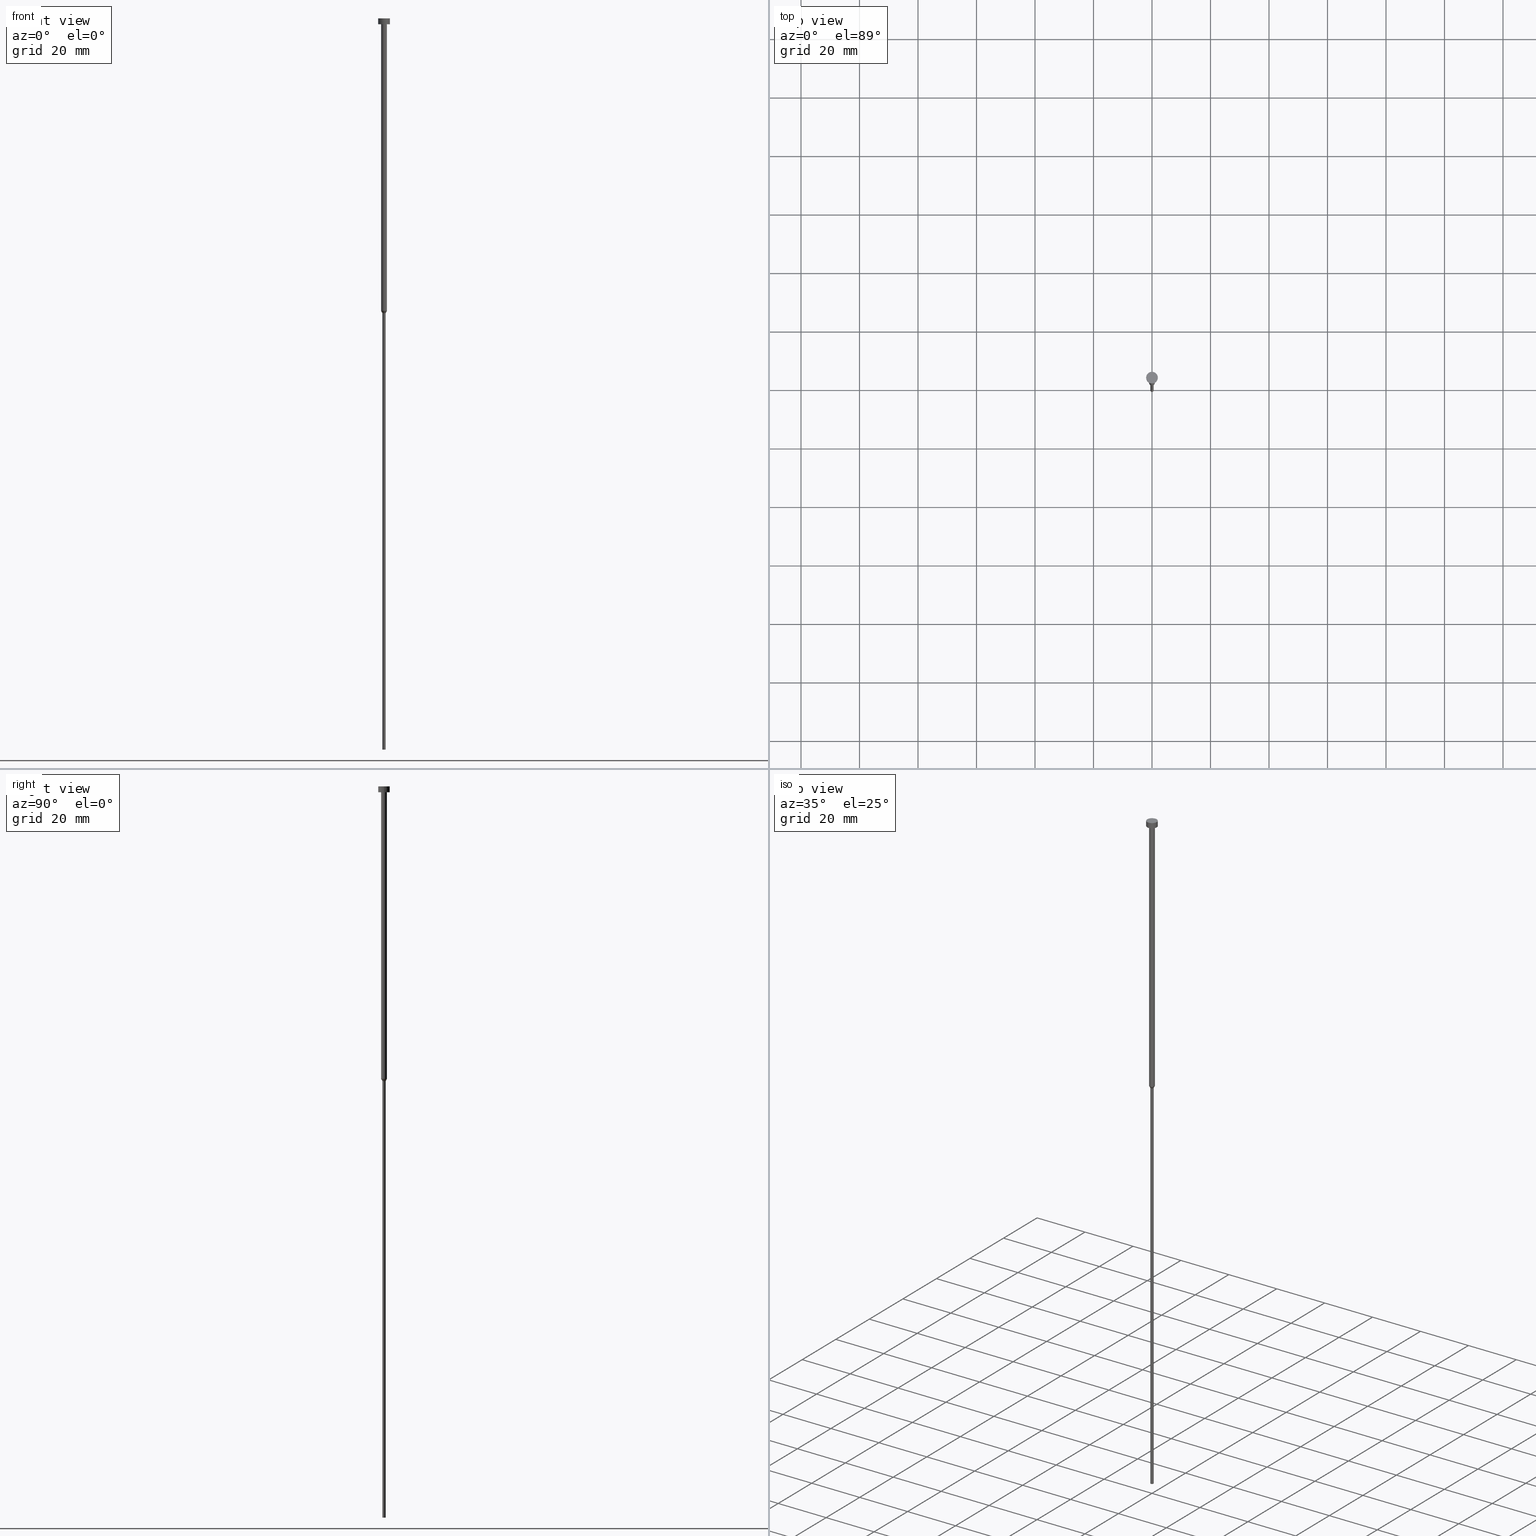
[diagram: canonical four-view strip — front | top / right | iso, engineering-drawing reading convention]
A machine part, canonical four-view strip (front | top / right | iso — engineering-drawing reading convention). The complete STEP part file that produces these views, byte-faithful:
ISO-10303-21;
HEADER;
FILE_DESCRIPTION (( 'STEP AP203' ),
    '1' );
FILE_NAME ('0484.STEP',
    '2023-02-13T10:58:07',
    ( '' ),
    ( '' ),
    'SwSTEP 2.0',
    'SolidWorks 2019',
    '' );
FILE_SCHEMA (( 'CONFIG_CONTROL_DESIGN' ));
ENDSEC;

DATA;
#1 = CARTESIAN_POINT ( 'NONE',  ( 1.000000000000003109, 0.000000000000000000, -100.0000000000000000 ) ) ;
#2 = PRODUCT_DEFINITION_FORMATION_WITH_SPECIFIED_SOURCE ( 'LIBOVOLN�', '', #4, .NOT_KNOWN. ) ;
#3 = PRODUCT_RELATED_PRODUCT_CATEGORY ( 'detail', '', ( #4 ) ) ;
#4 = PRODUCT ( '0484', '0484', '', ( #146 ) ) ;
#5 = ORIENTED_EDGE ( 'NONE', *, *, #117, .T. ) ;
#6 = CALENDAR_DATE ( 2023, 13, 2 ) ;
#7 = ORIENTED_EDGE ( 'NONE', *, *, #73, .F. ) ;
#8 = DIRECTION ( 'NONE',  ( -0.000000000000000000, -0.000000000000000000, 1.000000000000000000 ) ) ;
#9 = FACE_OUTER_BOUND ( 'NONE', #147, .T. ) ;
#10 = VERTEX_POINT ( 'NONE', #249 ) ;
#11 = PLANE ( 'NONE',  #158 ) ;
#12 = AXIS2_PLACEMENT_3D ( 'NONE', #182, #40, #219 ) ;
#13 = PERSON_AND_ORGANIZATION_ROLE ( 'creator' ) ;
#14 = ORIENTED_EDGE ( 'NONE', *, *, #119, .T. ) ;
#15 = DIRECTION ( 'NONE',  ( 1.000000000000000000, 0.000000000000000000, 0.000000000000000000 ) ) ;
#16 = EDGE_LOOP ( 'NONE', ( #236, #14 ) ) ;
#17 = CARTESIAN_POINT ( 'NONE',  ( -1.000000000000003109, 1.224646799147356905E-16, -100.0000000000000000 ) ) ;
#18 = ADVANCED_FACE ( 'NONE', ( #319 ), #187, .T. ) ;
#19 = AXIS2_PLACEMENT_3D ( 'NONE', #338, #312, #317 ) ;
#20 =( NAMED_UNIT ( * ) SI_UNIT ( $, .STERADIAN. ) SOLID_ANGLE_UNIT ( ) );
#21 = ORIENTED_EDGE ( 'NONE', *, *, #191, .F. ) ;
#22 = DATE_TIME_ROLE ( 'classification_date' ) ;
#23 = CC_DESIGN_DATE_AND_TIME_ASSIGNMENT ( #154, #95, ( #88 ) ) ;
#24 = CALENDAR_DATE ( 2023, 13, 2 ) ;
#25 = DIRECTION ( 'NONE',  ( -0.000000000000000000, -0.000000000000000000, 1.000000000000000000 ) ) ;
#26 = CARTESIAN_POINT ( 'NONE',  ( 2.000000000000000000, 0.000000000000000000, 0.000000000000000000 ) ) ;
#27 = CARTESIAN_POINT ( 'NONE',  ( 0.000000000000000000, 0.000000000000000000, -100.0000000000000000 ) ) ;
#28 = LINE ( 'NONE', #140, #51 ) ;
#29 = DIRECTION ( 'NONE',  ( -0.000000000000000000, -0.000000000000000000, 1.000000000000000000 ) ) ;
#30 = AXIS2_PLACEMENT_3D ( 'NONE', #230, #330, #204 ) ;
#31 = CIRCLE ( 'NONE', #19, 2.000000000000000000 ) ;
#32 = CARTESIAN_POINT ( 'NONE',  ( 0.5499999999999999334, 0.000000000000000000, -250.0000000000000000 ) ) ;
#33 = PRODUCT_DEFINITION_SHAPE ( 'NONE', 'NONE',  #88 ) ;
#34 = ADVANCED_FACE ( 'NONE', ( #198 ), #294, .T. ) ;
#35 = ORIENTED_EDGE ( 'NONE', *, *, #261, .T. ) ;
#36 = AXIS2_PLACEMENT_3D ( 'NONE', #67, #124, #243 ) ;
#37 = CARTESIAN_POINT ( 'NONE',  ( 1.000000000000003331, 0.000000000000000000, 0.000000000000000000 ) ) ;
#38 = VERTEX_POINT ( 'NONE', #350 ) ;
#39 = VERTEX_POINT ( 'NONE', #105 ) ;
#40 = DIRECTION ( 'NONE',  ( -0.000000000000000000, -0.000000000000000000, 1.000000000000000000 ) ) ;
#41 = EDGE_CURVE ( 'NONE', #54, #332, #159, .T. ) ;
#42 = CYLINDRICAL_SURFACE ( 'NONE', #84, 0.5499999999999999334 ) ;
#43 = PERSON_AND_ORGANIZATION_ROLE ( 'creator' ) ;
#44 = ORIENTED_EDGE ( 'NONE', *, *, #244, .T. ) ;
#45 = AXIS2_PLACEMENT_3D ( 'NONE', #336, #8, #206 ) ;
#46 = FACE_OUTER_BOUND ( 'NONE', #90, .T. ) ;
#47 = CALENDAR_DATE ( 2023, 13, 2 ) ;
#48 = EDGE_CURVE ( 'NONE', #332, #54, #266, .T. ) ;
#49 = ADVANCED_FACE ( 'NONE', ( #193 ), #169, .T. ) ;
#50 = DATE_AND_TIME ( #24, #185 ) ;
#51 = VECTOR ( 'NONE', #208, 1000.000000000000000 ) ;
#52 = PERSON_AND_ORGANIZATION_ROLE ( 'design_supplier' ) ;
#53 = EDGE_CURVE ( 'NONE', #38, #10, #227, .T. ) ;
#54 = VERTEX_POINT ( 'NONE', #32 ) ;
#55 = DIRECTION ( 'NONE',  ( 1.000000000000000000, 0.000000000000000000, 0.000000000000000000 ) ) ;
#56 = FACE_OUTER_BOUND ( 'NONE', #284, .T. ) ;
#57 = DIRECTION ( 'NONE',  ( 1.000000000000000000, 0.000000000000000000, 0.000000000000000000 ) ) ;
#58 = DIRECTION ( 'NONE',  ( -0.000000000000000000, -0.000000000000000000, 1.000000000000000000 ) ) ;
#59 = EDGE_CURVE ( 'NONE', #306, #10, #282, .T. ) ;
#60 = ORIENTED_EDGE ( 'NONE', *, *, #174, .T. ) ;
#61 = AXIS2_PLACEMENT_3D ( 'NONE', #228, #254, #57 ) ;
#62 = DATE_AND_TIME ( #305, #190 ) ;
#63 = EDGE_LOOP ( 'NONE', ( #342, #233, #85, #231 ) ) ;
#64 = CIRCLE ( 'NONE', #275, 1.000000000000003553 ) ;
#65 = VERTEX_POINT ( 'NONE', #82 ) ;
#66 = ORIENTED_EDGE ( 'NONE', *, *, #174, .F. ) ;
#67 = CARTESIAN_POINT ( 'NONE',  ( 0.000000000000000000, 0.000000000000000000, -2.000000000000000444 ) ) ;
#68 = DIRECTION ( 'NONE',  ( -0.000000000000000000, -0.000000000000000000, 1.000000000000000000 ) ) ;
#69 = ADVANCED_FACE ( 'NONE', ( #301 ), #109, .T. ) ;
#70 = APPROVAL_DATE_TIME ( #215, #195 ) ;
#71 = ORIENTED_EDGE ( 'NONE', *, *, #48, .F. ) ;
#72 = CARTESIAN_POINT ( 'NONE',  ( -1.000000000000003553, 1.224646799147357398E-16, -2.000000000000000444 ) ) ;
#73 = EDGE_CURVE ( 'NONE', #205, #240, #308, .T. ) ;
#74 = APPROVAL ( #183, 'NEUR�EN�' ) ;
#75 = DIRECTION ( 'NONE',  ( 1.000000000000000000, 0.000000000000000000, 0.000000000000000000 ) ) ;
#76 =( LENGTH_UNIT ( ) NAMED_UNIT ( * ) SI_UNIT ( .MILLI., .METRE. ) );
#77 = ORIENTED_EDGE ( 'NONE', *, *, #102, .F. ) ;
#78 = AXIS2_PLACEMENT_3D ( 'NONE', #299, #175, #325 ) ;
#79 = AXIS2_PLACEMENT_3D ( 'NONE', #171, #29, #135 ) ;
#80 = CYLINDRICAL_SURFACE ( 'NONE', #61, 0.5499999999999999334 ) ;
#81 = DIRECTION ( 'NONE',  ( 1.000000000000000000, 0.000000000000000000, 0.000000000000000000 ) ) ;
#82 = CARTESIAN_POINT ( 'NONE',  ( 1.000000000000003553, 0.000000000000000000, -2.000000000000000444 ) ) ;
#83 = AXIS2_PLACEMENT_3D ( 'NONE', #302, #131, #346 ) ;
#84 = AXIS2_PLACEMENT_3D ( 'NONE', #341, #25, #134 ) ;
#85 = ORIENTED_EDGE ( 'NONE', *, *, #279, .T. ) ;
#86 = ADVANCED_FACE ( 'NONE', ( #272 ), #151, .T. ) ;
#87 = CARTESIAN_POINT ( 'NONE',  ( 0.000000000000000000, 0.000000000000000000, -100.0000000000000000 ) ) ;
#88 = PRODUCT_DEFINITION ( 'NEZN�M�', '', #2, #161 ) ;
#89 = APPLICATION_PROTOCOL_DEFINITION ( 'international standard', 'config_control_design', 1994, #237 ) ;
#90 = EDGE_LOOP ( 'NONE', ( #7, #276 ) ) ;
#91 = AXIS2_PLACEMENT_3D ( 'NONE', #122, #337, #55 ) ;
#92 = CARTESIAN_POINT ( 'NONE',  ( 0.000000000000000000, 0.000000000000000000, -2.449293598294705921E-16 ) ) ;
#93 = CARTESIAN_POINT ( 'NONE',  ( 0.000000000000000000, 0.000000000000000000, -100.0000000000000000 ) ) ;
#94 = EDGE_CURVE ( 'NONE', #65, #181, #172, .T. ) ;
#95 = DATE_TIME_ROLE ( 'creation_date' ) ;
#96 = AXIS2_PLACEMENT_3D ( 'NONE', #291, #251, #81 ) ;
#97 = CARTESIAN_POINT ( 'NONE',  ( -2.000000000000000000, 2.449293598294706414E-16, -2.449293598294705921E-16 ) ) ;
#98 = AXIS2_PLACEMENT_3D ( 'NONE', #153, #268, #15 ) ;
#99 = SHAPE_DEFINITION_REPRESENTATION ( #33, #104 ) ;
#100 = EDGE_CURVE ( 'NONE', #39, #306, #114, .T. ) ;
#101 = EDGE_CURVE ( 'NONE', #240, #205, #115, .T. ) ;
#102 = EDGE_CURVE ( 'NONE', #113, #323, #31, .T. ) ;
#103 = COORDINATED_UNIVERSAL_TIME_OFFSET ( 1, 0, .AHEAD. ) ;
#104 = ADVANCED_BREP_SHAPE_REPRESENTATION ( '0484', ( #259, #354 ), #256 ) ;
#105 = CARTESIAN_POINT ( 'NONE',  ( -0.5500000000000000444, 6.735557395310442516E-17, -100.7794228634059976 ) ) ;
#106 = VECTOR ( 'NONE', #351, 1000.000000000000000 ) ;
#107 = VECTOR ( 'NONE', #224, 1000.000000000000000 ) ;
#108 = FACE_OUTER_BOUND ( 'NONE', #63, .T. ) ;
#109 = CYLINDRICAL_SURFACE ( 'NONE', #30, 1.000000000000003331 ) ;
#110 = DIRECTION ( 'NONE',  ( -0.000000000000000000, -0.000000000000000000, 1.000000000000000000 ) ) ;
#111 = LINE ( 'NONE', #292, #207 ) ;
#112 = CC_DESIGN_DATE_AND_TIME_ASSIGNMENT ( #50, #22, ( #343 ) ) ;
#113 = VERTEX_POINT ( 'NONE', #97 ) ;
#114 = LINE ( 'NONE', #17, #178 ) ;
#115 = CIRCLE ( 'NONE', #36, 2.000000000000000000 ) ;
#116 = FACE_BOUND ( 'NONE', #16, .T. ) ;
#117 = EDGE_CURVE ( 'NONE', #39, #38, #225, .T. ) ;
#118 = COORDINATED_UNIVERSAL_TIME_OFFSET ( 1, 0, .AHEAD. ) ;
#119 = EDGE_CURVE ( 'NONE', #181, #65, #64, .T. ) ;
#120 = ORIENTED_EDGE ( 'NONE', *, *, #261, .F. ) ;
#121 = LINE ( 'NONE', #37, #137 ) ;
#122 = CARTESIAN_POINT ( 'NONE',  ( 0.000000000000000000, 0.000000000000000000, 0.000000000000000000 ) ) ;
#123 = ORIENTED_EDGE ( 'NONE', *, *, #279, .F. ) ;
#124 = DIRECTION ( 'NONE',  ( -0.000000000000000000, -0.000000000000000000, 1.000000000000000000 ) ) ;
#125 = DIRECTION ( 'NONE',  ( 0.000000000000000000, 0.000000000000000000, 1.000000000000000000 ) ) ;
#126 = ORIENTED_EDGE ( 'NONE', *, *, #94, .F. ) ;
#127 = APPROVAL_DATE_TIME ( #273, #202 ) ;
#128 = LOCAL_TIME ( 11, 58, 7.000000000000000000, #132 ) ;
#129 = EDGE_LOOP ( 'NONE', ( #120, #145, #44, #77 ) ) ;
#130 = APPLICATION_PROTOCOL_DEFINITION ( 'international standard', 'config_control_design', 1994, #162 ) ;
#131 = DIRECTION ( 'NONE',  ( -0.000000000000000000, -0.000000000000000000, 1.000000000000000000 ) ) ;
#132 = COORDINATED_UNIVERSAL_TIME_OFFSET ( 1, 0, .AHEAD. ) ;
#133 = ADVANCED_FACE ( 'NONE', ( #116, #46 ), #11, .T. ) ;
#134 = DIRECTION ( 'NONE',  ( 1.000000000000000000, 0.000000000000000000, 0.000000000000000000 ) ) ;
#135 = DIRECTION ( 'NONE',  ( 1.000000000000000000, 0.000000000000000000, 0.000000000000000000 ) ) ;
#136 = AXIS2_PLACEMENT_3D ( 'NONE', #281, #201, #252 ) ;
#137 = VECTOR ( 'NONE', #143, 1000.000000000000000 ) ;
#138 = CARTESIAN_POINT ( 'NONE',  ( 0.000000000000000000, 0.000000000000000000, -100.0000000000000000 ) ) ;
#139 = EDGE_CURVE ( 'NONE', #323, #113, #200, .T. ) ;
#140 = CARTESIAN_POINT ( 'NONE',  ( -2.000000000000000000, 2.449293598294706414E-16, 0.000000000000000000 ) ) ;
#141 = CC_DESIGN_APPROVAL ( #74, ( #88 ) ) ;
#142 = ORIENTED_EDGE ( 'NONE', *, *, #41, .F. ) ;
#143 = DIRECTION ( 'NONE',  ( -0.000000000000000000, -0.000000000000000000, 1.000000000000000000 ) ) ;
#144 = PERSON_AND_ORGANIZATION_ROLE ( 'design_owner' ) ;
#145 = ORIENTED_EDGE ( 'NONE', *, *, #101, .T. ) ;
#146 = MECHANICAL_CONTEXT ( 'NONE', #162, 'mechanical' ) ;
#147 = EDGE_LOOP ( 'NONE', ( #184, #293, #287, #123 ) ) ;
#148 = DIRECTION ( 'NONE',  ( -0.000000000000000000, -0.000000000000000000, 1.000000000000000000 ) ) ;
#149 = CC_DESIGN_PERSON_AND_ORGANIZATION_ASSIGNMENT ( #310, #43, ( #88 ) ) ;
#150 = APPROVAL_STATUS ( 'not_yet_approved' ) ;
#151 = CONICAL_SURFACE ( 'NONE', #199, 1.000000000000003109, 0.5235987755983059211 ) ;
#152 = ORIENTED_EDGE ( 'NONE', *, *, #102, .T. ) ;
#153 = CARTESIAN_POINT ( 'NONE',  ( 0.000000000000000000, 0.000000000000000000, -100.7794228634059976 ) ) ;
#154 = DATE_AND_TIME ( #6, #322 ) ;
#155 = EDGE_LOOP ( 'NONE', ( #303, #5, #242, #271 ) ) ;
#156 = DIRECTION ( 'NONE',  ( 1.000000000000000000, 0.000000000000000000, 0.000000000000000000 ) ) ;
#157 = EDGE_CURVE ( 'NONE', #38, #39, #274, .T. ) ;
#158 = AXIS2_PLACEMENT_3D ( 'NONE', #333, #189, #238 ) ;
#159 = CIRCLE ( 'NONE', #83, 0.5499999999999999334 ) ;
#160 = CC_DESIGN_PERSON_AND_ORGANIZATION_ASSIGNMENT ( #241, #13, ( #2 ) ) ;
#161 = DESIGN_CONTEXT ( 'detailed design', #237, 'design' ) ;
#162 = APPLICATION_CONTEXT ( 'configuration controlled 3d designs of mechanical parts and assemblies' ) ;
#163 = SECURITY_CLASSIFICATION_LEVEL ( 'unclassified' ) ;
#164 = EDGE_CURVE ( 'NONE', #10, #65, #121, .T. ) ;
#165 = DIRECTION ( 'NONE',  ( -0.000000000000000000, -0.000000000000000000, 1.000000000000000000 ) ) ;
#166 = VECTOR ( 'NONE', #327, 1000.000000000000000 ) ;
#167 = CARTESIAN_POINT ( 'NONE',  ( -1.000000000000003109, 1.224646799147356905E-16, -100.0000000000000000 ) ) ;
#168 = DIRECTION ( 'NONE',  ( 1.000000000000000000, 0.000000000000000000, 0.000000000000000000 ) ) ;
#169 = PLANE ( 'NONE',  #136 ) ;
#170 = DIRECTION ( 'NONE',  ( 0.5000000000000061062, 0.000000000000000000, 0.8660254037844351549 ) ) ;
#171 = CARTESIAN_POINT ( 'NONE',  ( 0.000000000000000000, 0.000000000000000000, 0.000000000000000000 ) ) ;
#172 = CIRCLE ( 'NONE', #45, 1.000000000000003553 ) ;
#173 = CC_DESIGN_APPROVAL ( #202, ( #343 ) ) ;
#174 = EDGE_CURVE ( 'NONE', #10, #306, #209, .T. ) ;
#175 = DIRECTION ( 'NONE',  ( -0.000000000000000000, -0.000000000000000000, 1.000000000000000000 ) ) ;
#176 = ORIENTED_EDGE ( 'NONE', *, *, #191, .T. ) ;
#177 = DIRECTION ( 'NONE',  ( -0.000000000000000000, -0.000000000000000000, 1.000000000000000000 ) ) ;
#178 = VECTOR ( 'NONE', #211, 1000.000000000000000 ) ;
#179 = ORIENTED_EDGE ( 'NONE', *, *, #244, .F. ) ;
#180 = LINE ( 'NONE', #285, #166 ) ;
#181 = VERTEX_POINT ( 'NONE', #72 ) ;
#182 = CARTESIAN_POINT ( 'NONE',  ( 0.000000000000000000, 0.000000000000000000, -100.7794228634059976 ) ) ;
#183 = APPROVAL_STATUS ( 'not_yet_approved' ) ;
#184 = ORIENTED_EDGE ( 'NONE', *, *, #41, .T. ) ;
#185 = LOCAL_TIME ( 11, 58, 7.000000000000000000, #103 ) ;
#186 = EDGE_LOOP ( 'NONE', ( #142, #71 ) ) ;
#187 = PLANE ( 'NONE',  #96 ) ;
#188 = CALENDAR_DATE ( 2023, 13, 2 ) ;
#189 = DIRECTION ( 'NONE',  ( 0.000000000000000000, 0.000000000000000000, -1.000000000000000000 ) ) ;
#190 = LOCAL_TIME ( 11, 58, 7.000000000000000000, #334 ) ;
#191 = EDGE_CURVE ( 'NONE', #306, #181, #111, .T. ) ;
#192 = CARTESIAN_POINT ( 'NONE',  ( 0.000000000000000000, 0.000000000000000000, 0.000000000000000000 ) ) ;
#193 = FACE_OUTER_BOUND ( 'NONE', #186, .T. ) ;
#194 = CARTESIAN_POINT ( 'NONE',  ( -2.000000000000000000, 2.449293598294706414E-16, -2.000000000000000444 ) ) ;
#195 = APPROVAL ( #150, 'NEUR�EN�' ) ;
#196 = ORIENTED_EDGE ( 'NONE', *, *, #119, .F. ) ;
#197 = FACE_OUTER_BOUND ( 'NONE', #203, .T. ) ;
#198 = FACE_OUTER_BOUND ( 'NONE', #155, .T. ) ;
#199 = AXIS2_PLACEMENT_3D ( 'NONE', #87, #264, #307 ) ;
#200 = CIRCLE ( 'NONE', #245, 2.000000000000000000 ) ;
#201 = DIRECTION ( 'NONE',  ( 0.000000000000000000, 0.000000000000000000, -1.000000000000000000 ) ) ;
#202 = APPROVAL ( #248, 'NEUR�EN�' ) ;
#203 = EDGE_LOOP ( 'NONE', ( #60, #176, #126, #289 ) ) ;
#204 = DIRECTION ( 'NONE',  ( 1.000000000000000000, 0.000000000000000000, 0.000000000000000000 ) ) ;
#205 = VERTEX_POINT ( 'NONE', #265 ) ;
#206 = DIRECTION ( 'NONE',  ( 1.000000000000000000, 0.000000000000000000, 0.000000000000000000 ) ) ;
#207 = VECTOR ( 'NONE', #68, 1000.000000000000000 ) ;
#208 = DIRECTION ( 'NONE',  ( -0.000000000000000000, -0.000000000000000000, 1.000000000000000000 ) ) ;
#209 = CIRCLE ( 'NONE', #324, 1.000000000000003109 ) ;
#210 = EDGE_LOOP ( 'NONE', ( #311, #152 ) ) ;
#211 = DIRECTION ( 'NONE',  ( -0.5000000000000061062, 6.123233995736841224E-17, 0.8660254037844351549 ) ) ;
#212 = CYLINDRICAL_SURFACE ( 'NONE', #91, 2.000000000000000000 ) ;
#213 = ORIENTED_EDGE ( 'NONE', *, *, #59, .T. ) ;
#214 = DIRECTION ( 'NONE',  ( -0.000000000000000000, -0.000000000000000000, 1.000000000000000000 ) ) ;
#215 = DATE_AND_TIME ( #47, #340 ) ;
#216 = EDGE_LOOP ( 'NONE', ( #21, #213, #313, #196 ) ) ;
#217 = DIRECTION ( 'NONE',  ( 1.000000000000000000, 0.000000000000000000, 0.000000000000000000 ) ) ;
#218 = APPROVAL_PERSON_ORGANIZATION ( #223, #202, #278 ) ;
#219 = DIRECTION ( 'NONE',  ( 1.000000000000000000, 0.000000000000000000, 0.000000000000000000 ) ) ;
#220 = CC_DESIGN_PERSON_AND_ORGANIZATION_ASSIGNMENT ( #315, #144, ( #4 ) ) ;
#221 = PERSON ( 'NEUR�EN�', 'NEUR�EN�', 'NEUR�EN�', ('NEUR�EN�'), ('NEUR�EN�'), ('NEUR�EN�') ) ;
#222 = ADVANCED_FACE ( 'NONE', ( #246 ), #212, .T. ) ;
#223 = PERSON_AND_ORGANIZATION ( #221, #318 ) ;
#224 = DIRECTION ( 'NONE',  ( -0.000000000000000000, -0.000000000000000000, 1.000000000000000000 ) ) ;
#225 = CIRCLE ( 'NONE', #12, 0.5500000000000000444 ) ;
#226 = ORIENTED_EDGE ( 'NONE', *, *, #73, .T. ) ;
#227 = LINE ( 'NONE', #1, #353 ) ;
#228 = CARTESIAN_POINT ( 'NONE',  ( 0.000000000000000000, 0.000000000000000000, 0.000000000000000000 ) ) ;
#229 = DIRECTION ( 'NONE',  ( 1.000000000000000000, 0.000000000000000000, 0.000000000000000000 ) ) ;
#230 = CARTESIAN_POINT ( 'NONE',  ( 0.000000000000000000, 0.000000000000000000, 0.000000000000000000 ) ) ;
#231 = ORIENTED_EDGE ( 'NONE', *, *, #117, .F. ) ;
#232 = DIRECTION ( 'NONE',  ( 1.000000000000000000, 0.000000000000000000, 0.000000000000000000 ) ) ;
#233 = ORIENTED_EDGE ( 'NONE', *, *, #48, .T. ) ;
#234 = AXIS2_PLACEMENT_3D ( 'NONE', #304, #177, #156 ) ;
#235 = PERSON_AND_ORGANIZATION ( #221, #318 ) ;
#236 = ORIENTED_EDGE ( 'NONE', *, *, #94, .T. ) ;
#237 = APPLICATION_CONTEXT ( 'configuration controlled 3d designs of mechanical parts and assemblies' ) ;
#238 = DIRECTION ( 'NONE',  ( -1.000000000000000000, 0.000000000000000000, -0.000000000000000000 ) ) ;
#239 =( NAMED_UNIT ( * ) PLANE_ANGLE_UNIT ( ) SI_UNIT ( $, .RADIAN. ) );
#240 = VERTEX_POINT ( 'NONE', #194 ) ;
#241 = PERSON_AND_ORGANIZATION ( #221, #318 ) ;
#242 = ORIENTED_EDGE ( 'NONE', *, *, #53, .T. ) ;
#243 = DIRECTION ( 'NONE',  ( 1.000000000000000000, 0.000000000000000000, 0.000000000000000000 ) ) ;
#244 = EDGE_CURVE ( 'NONE', #205, #323, #347, .T. ) ;
#245 = AXIS2_PLACEMENT_3D ( 'NONE', #92, #214, #314 ) ;
#246 = FACE_OUTER_BOUND ( 'NONE', #129, .T. ) ;
#247 = ADVANCED_FACE ( 'NONE', ( #56 ), #344, .T. ) ;
#248 = APPROVAL_STATUS ( 'not_yet_approved' ) ;
#249 = CARTESIAN_POINT ( 'NONE',  ( 1.000000000000003109, 0.000000000000000000, -100.0000000000000000 ) ) ;
#250 = PERSON_AND_ORGANIZATION ( #221, #318 ) ;
#251 = DIRECTION ( 'NONE',  ( 0.000000000000000000, -0.000000000000000000, 1.000000000000000000 ) ) ;
#252 = DIRECTION ( 'NONE',  ( -1.000000000000000000, 0.000000000000000000, -0.000000000000000000 ) ) ;
#253 = APPROVAL_PERSON_ORGANIZATION ( #262, #195, #267 ) ;
#254 = DIRECTION ( 'NONE',  ( -0.000000000000000000, -0.000000000000000000, 1.000000000000000000 ) ) ;
#255 = DIRECTION ( 'NONE',  ( 1.000000000000000000, 0.000000000000000000, 0.000000000000000000 ) ) ;
#256 =( GEOMETRIC_REPRESENTATION_CONTEXT ( 3 ) GLOBAL_UNCERTAINTY_ASSIGNED_CONTEXT ( ( #297 ) ) GLOBAL_UNIT_ASSIGNED_CONTEXT ( ( #76, #239, #20 ) ) REPRESENTATION_CONTEXT ( 'NONE', 'WORKASPACE' ) );
#257 = ORIENTED_EDGE ( 'NONE', *, *, #157, .T. ) ;
#258 = DIRECTION ( 'NONE',  ( -0.000000000000000000, -0.000000000000000000, 1.000000000000000000 ) ) ;
#259 = MANIFOLD_SOLID_BREP ( 'Rotovat1', #328 ) ;
#260 = APPROVAL_DATE_TIME ( #62, #74 ) ;
#261 = EDGE_CURVE ( 'NONE', #240, #113, #28, .T. ) ;
#262 = PERSON_AND_ORGANIZATION ( #221, #318 ) ;
#263 = EDGE_LOOP ( 'NONE', ( #257, #335, #66, #316 ) ) ;
#264 = DIRECTION ( 'NONE',  ( -0.000000000000000000, -0.000000000000000000, 1.000000000000000000 ) ) ;
#265 = CARTESIAN_POINT ( 'NONE',  ( 2.000000000000000000, 0.000000000000000000, -2.000000000000000444 ) ) ;
#266 = CIRCLE ( 'NONE', #78, 0.5499999999999999334 ) ;
#267 = APPROVAL_ROLE ( '' ) ;
#268 = DIRECTION ( 'NONE',  ( -0.000000000000000000, -0.000000000000000000, 1.000000000000000000 ) ) ;
#269 = PERSON_AND_ORGANIZATION ( #221, #318 ) ;
#270 = CC_DESIGN_PERSON_AND_ORGANIZATION_ASSIGNMENT ( #269, #52, ( #2 ) ) ;
#271 = ORIENTED_EDGE ( 'NONE', *, *, #59, .F. ) ;
#272 = FACE_OUTER_BOUND ( 'NONE', #263, .T. ) ;
#273 = DATE_AND_TIME ( #188, #128 ) ;
#274 = CIRCLE ( 'NONE', #98, 0.5500000000000000444 ) ;
#275 = AXIS2_PLACEMENT_3D ( 'NONE', #320, #148, #75 ) ;
#276 = ORIENTED_EDGE ( 'NONE', *, *, #101, .F. ) ;
#277 = AXIS2_PLACEMENT_3D ( 'NONE', #138, #110, #255 ) ;
#278 = APPROVAL_ROLE ( '' ) ;
#279 = EDGE_CURVE ( 'NONE', #54, #38, #180, .T. ) ;
#280 = LINE ( 'NONE', #348, #106 ) ;
#281 = CARTESIAN_POINT ( 'NONE',  ( 0.000000000000000000, 0.000000000000000000, -250.0000000000000000 ) ) ;
#282 = CIRCLE ( 'NONE', #277, 1.000000000000003109 ) ;
#283 = APPROVAL_PERSON_ORGANIZATION ( #235, #74, #290 ) ;
#284 = EDGE_LOOP ( 'NONE', ( #226, #35, #331, #179 ) ) ;
#285 = CARTESIAN_POINT ( 'NONE',  ( 0.5499999999999999334, 0.000000000000000000, 0.000000000000000000 ) ) ;
#286 = CARTESIAN_POINT ( 'NONE',  ( 0.000000000000000000, 0.000000000000000000, 0.000000000000000000 ) ) ;
#287 = ORIENTED_EDGE ( 'NONE', *, *, #157, .F. ) ;
#288 = COORDINATED_UNIVERSAL_TIME_OFFSET ( 1, 0, .AHEAD. ) ;
#289 = ORIENTED_EDGE ( 'NONE', *, *, #164, .F. ) ;
#290 = APPROVAL_ROLE ( '' ) ;
#291 = CARTESIAN_POINT ( 'NONE',  ( 0.000000000000000000, 0.000000000000000000, -1.224646799147352961E-16 ) ) ;
#292 = CARTESIAN_POINT ( 'NONE',  ( -1.000000000000003331, 1.224646799147357151E-16, 0.000000000000000000 ) ) ;
#293 = ORIENTED_EDGE ( 'NONE', *, *, #321, .T. ) ;
#294 = CONICAL_SURFACE ( 'NONE', #339, 1.000000000000003109, 0.5235987755983059211 ) ;
#295 = PERSON_AND_ORGANIZATION_ROLE ( 'classification_officer' ) ;
#296 = ADVANCED_FACE ( 'NONE', ( #9 ), #42, .T. ) ;
#297 = UNCERTAINTY_MEASURE_WITH_UNIT (LENGTH_MEASURE( 1.000000000000000082E-05 ), #76, 'distance_accuracy_value', 'NONE');
#298 = CC_DESIGN_SECURITY_CLASSIFICATION ( #343, ( #2 ) ) ;
#299 = CARTESIAN_POINT ( 'NONE',  ( 0.000000000000000000, 0.000000000000000000, -250.0000000000000000 ) ) ;
#300 = CYLINDRICAL_SURFACE ( 'NONE', #79, 1.000000000000003331 ) ;
#301 = FACE_OUTER_BOUND ( 'NONE', #216, .T. ) ;
#302 = CARTESIAN_POINT ( 'NONE',  ( 0.000000000000000000, 0.000000000000000000, -250.0000000000000000 ) ) ;
#303 = ORIENTED_EDGE ( 'NONE', *, *, #100, .F. ) ;
#304 = CARTESIAN_POINT ( 'NONE',  ( 0.000000000000000000, 0.000000000000000000, -2.000000000000000444 ) ) ;
#305 = CALENDAR_DATE ( 2023, 13, 2 ) ;
#306 = VERTEX_POINT ( 'NONE', #167 ) ;
#307 = DIRECTION ( 'NONE',  ( 1.000000000000000000, 0.000000000000000000, 0.000000000000000000 ) ) ;
#308 = CIRCLE ( 'NONE', #234, 2.000000000000000000 ) ;
#309 = AXIS2_PLACEMENT_3D ( 'NONE', #192, #165, #168 ) ;
#310 = PERSON_AND_ORGANIZATION ( #221, #318 ) ;
#311 = ORIENTED_EDGE ( 'NONE', *, *, #139, .T. ) ;
#312 = DIRECTION ( 'NONE',  ( -0.000000000000000000, -0.000000000000000000, 1.000000000000000000 ) ) ;
#313 = ORIENTED_EDGE ( 'NONE', *, *, #164, .T. ) ;
#314 = DIRECTION ( 'NONE',  ( 1.000000000000000000, 0.000000000000000000, 0.000000000000000000 ) ) ;
#315 = PERSON_AND_ORGANIZATION ( #221, #318 ) ;
#316 = ORIENTED_EDGE ( 'NONE', *, *, #53, .F. ) ;
#317 = DIRECTION ( 'NONE',  ( 1.000000000000000000, 0.000000000000000000, 0.000000000000000000 ) ) ;
#318 = ORGANIZATION ( 'NEUR�EN�', 'NEUR�EN�', '' ) ;
#319 = FACE_OUTER_BOUND ( 'NONE', #210, .T. ) ;
#320 = CARTESIAN_POINT ( 'NONE',  ( 0.000000000000000000, 0.000000000000000000, -2.000000000000000444 ) ) ;
#321 = EDGE_CURVE ( 'NONE', #332, #39, #280, .T. ) ;
#322 = LOCAL_TIME ( 11, 58, 7.000000000000000000, #118 ) ;
#323 = VERTEX_POINT ( 'NONE', #326 ) ;
#324 = AXIS2_PLACEMENT_3D ( 'NONE', #93, #258, #217 ) ;
#325 = DIRECTION ( 'NONE',  ( 1.000000000000000000, 0.000000000000000000, 0.000000000000000000 ) ) ;
#326 = CARTESIAN_POINT ( 'NONE',  ( 2.000000000000000000, 0.000000000000000000, -2.449293598294705921E-16 ) ) ;
#327 = DIRECTION ( 'NONE',  ( -0.000000000000000000, -0.000000000000000000, 1.000000000000000000 ) ) ;
#328 = CLOSED_SHELL ( 'NONE', ( #247, #349, #86, #296, #49, #329, #34, #69, #133, #222, #18 ) ) ;
#329 = ADVANCED_FACE ( 'NONE', ( #108 ), #80, .T. ) ;
#330 = DIRECTION ( 'NONE',  ( -0.000000000000000000, -0.000000000000000000, 1.000000000000000000 ) ) ;
#331 = ORIENTED_EDGE ( 'NONE', *, *, #139, .F. ) ;
#332 = VERTEX_POINT ( 'NONE', #355 ) ;
#333 = CARTESIAN_POINT ( 'NONE',  ( 0.000000000000000000, -2.000000000000000000, -2.000000000000000444 ) ) ;
#334 = COORDINATED_UNIVERSAL_TIME_OFFSET ( 1, 0, .AHEAD. ) ;
#335 = ORIENTED_EDGE ( 'NONE', *, *, #100, .T. ) ;
#336 = CARTESIAN_POINT ( 'NONE',  ( 0.000000000000000000, 0.000000000000000000, -2.000000000000000444 ) ) ;
#337 = DIRECTION ( 'NONE',  ( -0.000000000000000000, -0.000000000000000000, 1.000000000000000000 ) ) ;
#338 = CARTESIAN_POINT ( 'NONE',  ( 0.000000000000000000, 0.000000000000000000, -2.449293598294705921E-16 ) ) ;
#339 = AXIS2_PLACEMENT_3D ( 'NONE', #27, #58, #229 ) ;
#340 = LOCAL_TIME ( 11, 58, 7.000000000000000000, #288 ) ;
#341 = CARTESIAN_POINT ( 'NONE',  ( 0.000000000000000000, 0.000000000000000000, 0.000000000000000000 ) ) ;
#342 = ORIENTED_EDGE ( 'NONE', *, *, #321, .F. ) ;
#343 = SECURITY_CLASSIFICATION ( '', '', #163 ) ;
#344 = CYLINDRICAL_SURFACE ( 'NONE', #309, 2.000000000000000000 ) ;
#345 = CC_DESIGN_PERSON_AND_ORGANIZATION_ASSIGNMENT ( #250, #295, ( #343 ) ) ;
#346 = DIRECTION ( 'NONE',  ( 1.000000000000000000, 0.000000000000000000, 0.000000000000000000 ) ) ;
#347 = LINE ( 'NONE', #26, #107 ) ;
#348 = CARTESIAN_POINT ( 'NONE',  ( -0.5499999999999999334, 6.735557395310441284E-17, 0.000000000000000000 ) ) ;
#349 = ADVANCED_FACE ( 'NONE', ( #197 ), #300, .T. ) ;
#350 = CARTESIAN_POINT ( 'NONE',  ( 0.5500000000000000444, 0.000000000000000000, -100.7794228634059976 ) ) ;
#351 = DIRECTION ( 'NONE',  ( -0.000000000000000000, -0.000000000000000000, 1.000000000000000000 ) ) ;
#352 = CC_DESIGN_APPROVAL ( #195, ( #2 ) ) ;
#353 = VECTOR ( 'NONE', #170, 1000.000000000000000 ) ;
#354 = AXIS2_PLACEMENT_3D ( 'NONE', #286, #125, #232 ) ;
#355 = CARTESIAN_POINT ( 'NONE',  ( -0.5499999999999999334, 6.735557395310441284E-17, -250.0000000000000000 ) ) ;
ENDSEC;
END-ISO-10303-21;
